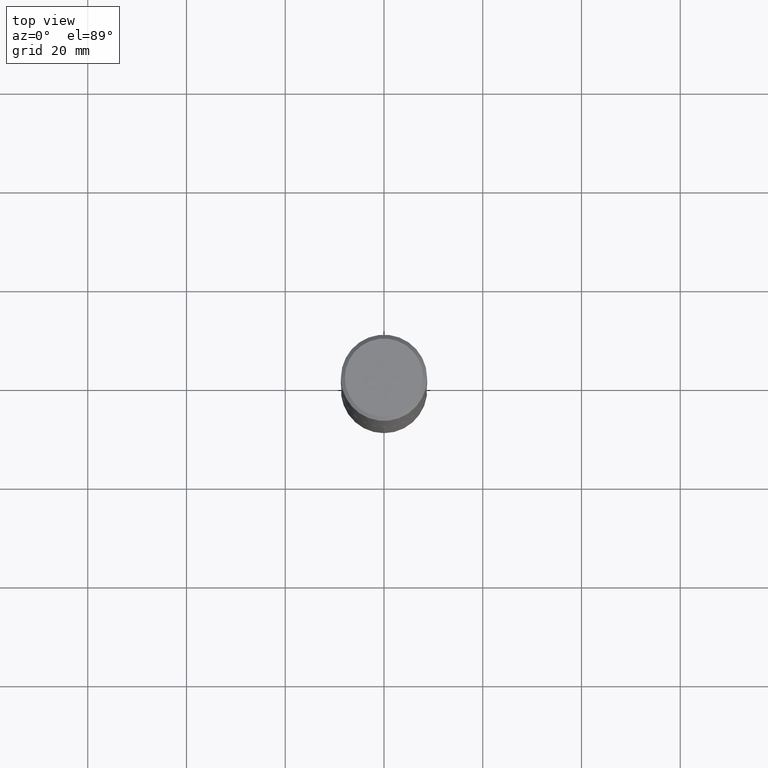
[diagram: clean part render]
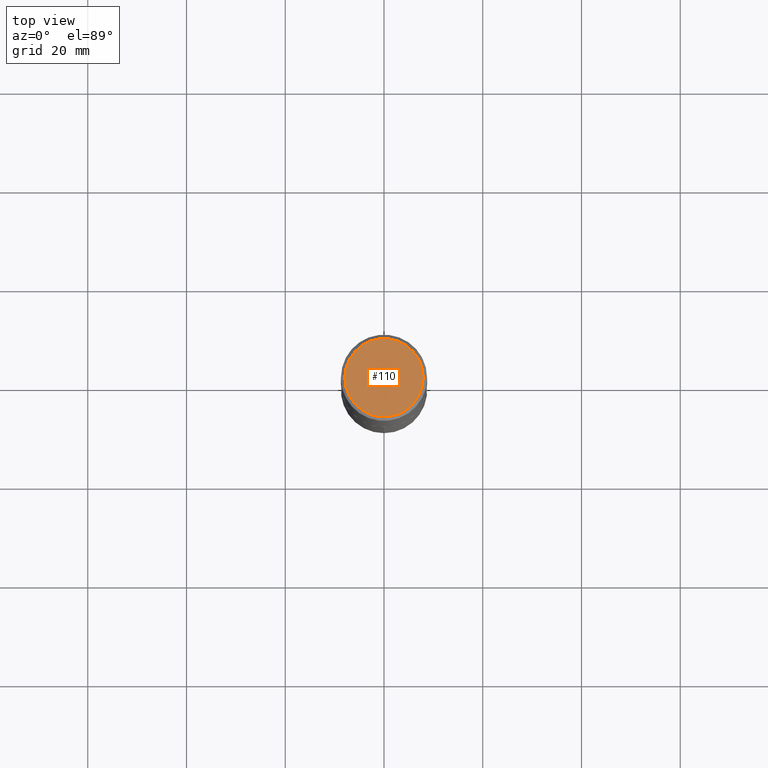
[diagram: same view with one face highlighted and labeled with its STEP entity id]
A machine part, top view. The second image highlights one B-rep face of the part: STEP entity #110.
In plain terms, the highlighted planar face has unit normal (0, -0, -1).
Its self-contained STEP definition (entity closure, byte-faithful):
#38 = ORIENTED_EDGE ( 'NONE', *, *, #247, .T. ) ;
#78 = PLANE ( 'NONE',  #381 ) ;
#84 = DIRECTION ( 'NONE',  ( -2.445468806185136597E-29, 3.491481338843145583E-15, 1.000000000000000000 ) ) ;
#92 = CARTESIAN_POINT ( 'NONE',  ( -1.871772216193328825E-46, 2.672394653685608435E-32, 7.654042494670956004E-18 ) ) ;
#110 = ADVANCED_FACE ( 'NONE', ( #148 ), #78, .F. ) ;
#120 = ORIENTED_EDGE ( 'NONE', *, *, #361, .T. ) ;
#121 = CARTESIAN_POINT ( 'NONE',  ( -1.871772216193328825E-46, 2.672394653685608435E-32, 7.654042494670956004E-18 ) ) ;
#131 = DIRECTION ( 'NONE',  ( 1.000000000000000000, -6.982962677686266711E-15, 4.876090663923400070E-29 ) ) ;
#148 = FACE_OUTER_BOUND ( 'NONE', #342, .T. ) ;
#206 = DIRECTION ( 'NONE',  ( 1.000000000000000000, -6.982962677686266711E-15, 4.876090663923400070E-29 ) ) ;
#234 = CIRCLE ( 'NONE', #245, 0.3125000000000000000 ) ;
#245 = AXIS2_PLACEMENT_3D ( 'NONE', #92, #382, #131 ) ;
#247 = EDGE_CURVE ( 'NONE', #378, #366, #287, .T. ) ;
#270 = CARTESIAN_POINT ( 'NONE',  ( -0.3125000000000000000, 2.236730232696381714E-15, 7.654042494655503883E-18 ) ) ;
#287 = CIRCLE ( 'NONE', #332, 0.3125000000000000000 ) ;
#309 = CARTESIAN_POINT ( 'NONE',  ( -9.358861080966644125E-47, 1.336197326842804217E-32, 3.827021247335478002E-18 ) ) ;
#321 = CARTESIAN_POINT ( 'NONE',  ( 0.3125000000000000000, -2.305655301438208344E-15, 7.654042494686648481E-18 ) ) ;
#332 = AXIS2_PLACEMENT_3D ( 'NONE', #121, #84, #206 ) ;
#337 = DIRECTION ( 'NONE',  ( -1.000000000000000000, 6.982962677686265922E-15, -4.876176775795935793E-29 ) ) ;
#342 = EDGE_LOOP ( 'NONE', ( #120, #38 ) ) ;
#344 = DIRECTION ( 'NONE',  ( 2.438088387897960049E-29, -3.491481338843145188E-15, -1.000000000000000000 ) ) ;
#361 = EDGE_CURVE ( 'NONE', #366, #378, #234, .T. ) ;
#366 = VERTEX_POINT ( 'NONE', #270 ) ;
#378 = VERTEX_POINT ( 'NONE', #321 ) ;
#381 = AXIS2_PLACEMENT_3D ( 'NONE', #309, #344, #337 ) ;
#382 = DIRECTION ( 'NONE',  ( -2.445468806185136597E-29, 3.491481338843145583E-15, 1.000000000000000000 ) ) ;